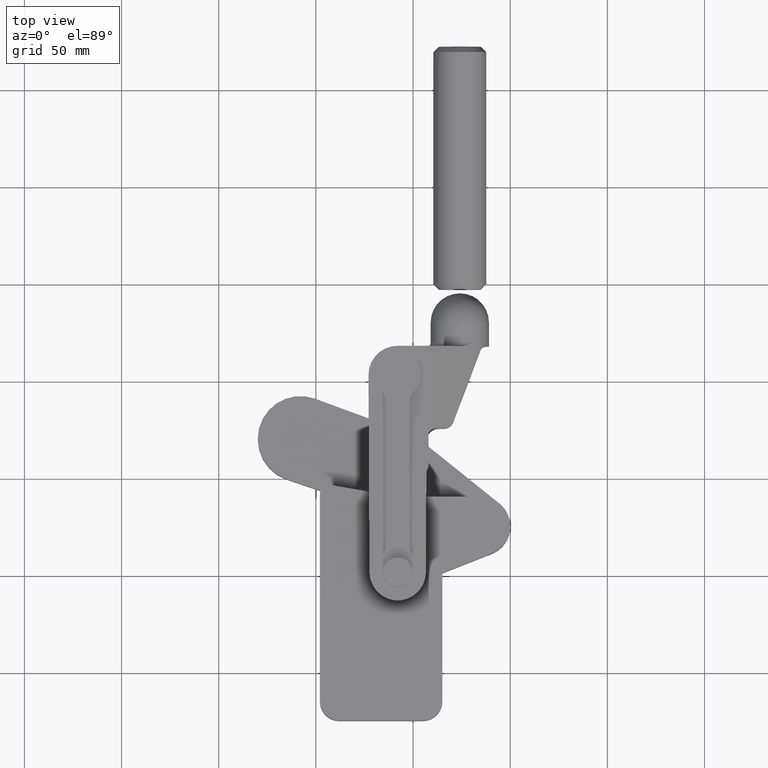
[diagram: clean part render]
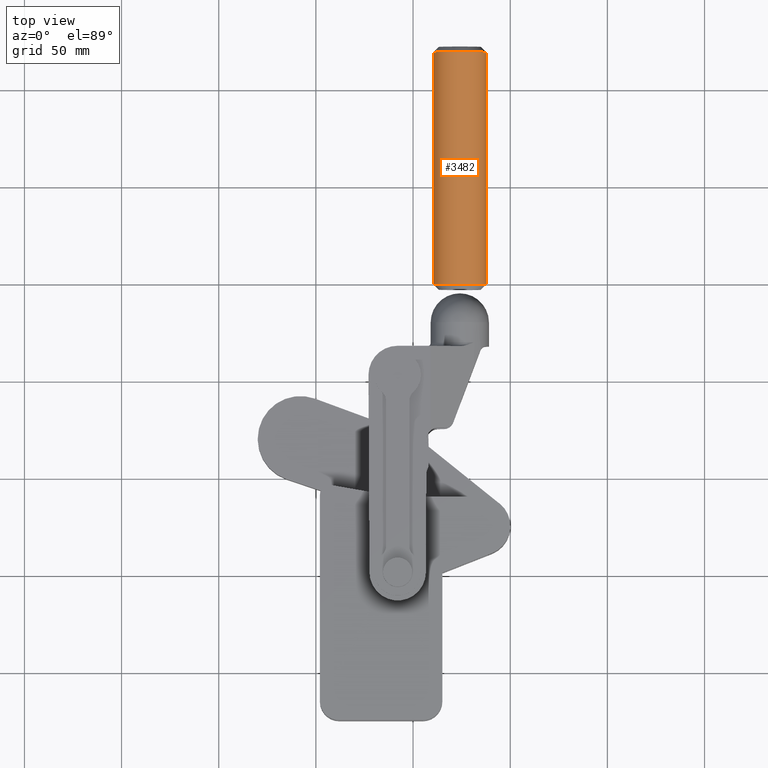
[diagram: same view with one face highlighted and labeled with its STEP entity id]
A machine part, top view. The second image highlights one B-rep face of the part: STEP entity #3482.
In plain terms, the highlighted cylindrical surface (edge-blend (fillet) strip) has radius 13.6 mm, axis along (-0, 1, 0).
Its self-contained STEP definition (entity closure, byte-faithful):
#3 = EDGE_CURVE ( 'NONE', #2210, #5060, #2033, .T. ) ;
#83 = CARTESIAN_POINT ( 'NONE',  ( -125.9537911822578900, 319.0024000505102900, -0.5924162648272348600 ) ) ;
#203 = VERTEX_POINT ( 'NONE', #5126 ) ;
#477 = EDGE_CURVE ( 'NONE', #203, #5060, #1132, .T. ) ;
#790 = CYLINDRICAL_SURFACE ( 'NONE', #3929, 13.60000000000000100 ) ;
#869 = VECTOR ( 'NONE', #3721, 1000.000000000000000 ) ;
#932 = LINE ( 'NONE', #4025, #2088 ) ;
#1132 = CIRCLE ( 'NONE', #4783, 13.60000000000000100 ) ;
#1292 = EDGE_CURVE ( 'NONE', #5420, #2210, #2377, .T. ) ;
#1697 = ORIENTED_EDGE ( 'NONE', *, *, #477, .F. ) ;
#1817 = EDGE_CURVE ( 'NONE', #5420, #203, #932, .T. ) ;
#1899 = ORIENTED_EDGE ( 'NONE', *, *, #1817, .F. ) ;
#2033 = LINE ( 'NONE', #4091, #869 ) ;
#2088 = VECTOR ( 'NONE', #2576, 1000.000000000000000 ) ;
#2210 = VERTEX_POINT ( 'NONE', #2449 ) ;
#2251 = DIRECTION ( 'NONE',  ( -1.000000000000000000, 0.0000000000000000000, 0.0000000000000000000 ) ) ;
#2279 = EDGE_LOOP ( 'NONE', ( #2772, #5174, #1697, #1899 ) ) ;
#2377 = CIRCLE ( 'NONE', #5047, 13.60000000000000100 ) ;
#2449 = CARTESIAN_POINT ( 'NONE',  ( -112.3537911822578500, 199.6024000505103700, -0.5924162648272333100 ) ) ;
#2516 = DIRECTION ( 'NONE',  ( -1.240359897555552500E-016, 1.000000000000000000, -0.0000000000000000000 ) ) ;
#2576 = DIRECTION ( 'NONE',  ( -1.240359897555552500E-016, 1.000000000000000000, -0.0000000000000000000 ) ) ;
#2772 = ORIENTED_EDGE ( 'NONE', *, *, #1292, .T. ) ;
#3079 = CARTESIAN_POINT ( 'NONE',  ( -112.3537911822578600, 319.0024000505102900, -0.5924162648272348600 ) ) ;
#3247 = FACE_OUTER_BOUND ( 'NONE', #2279, .T. ) ;
#3273 = DIRECTION ( 'NONE',  ( -1.000000000000000000, 0.0000000000000000000, 0.0000000000000000000 ) ) ;
#3354 = CARTESIAN_POINT ( 'NONE',  ( -139.5537911822578700, 199.6024000505103700, -0.5924162648272348600 ) ) ;
#3482 = ADVANCED_FACE ( 'NONE', ( #3247 ), #790, .T. ) ;
#3721 = DIRECTION ( 'NONE',  ( -1.240359897555552500E-016, 1.000000000000000000, -0.0000000000000000000 ) ) ;
#3929 = AXIS2_PLACEMENT_3D ( 'NONE', #5160, #2516, #5611 ) ;
#4025 = CARTESIAN_POINT ( 'NONE',  ( -139.5537911822579000, 321.8024000505103000, -0.5924162648272348600 ) ) ;
#4091 = CARTESIAN_POINT ( 'NONE',  ( -112.3537911822578800, 321.8024000505103000, -0.5924162648272333100 ) ) ;
#4783 = AXIS2_PLACEMENT_3D ( 'NONE', #83, #5349, #2251 ) ;
#4902 = DIRECTION ( 'NONE',  ( -1.240359897555552500E-016, 1.000000000000000000, -0.0000000000000000000 ) ) ;
#5047 = AXIS2_PLACEMENT_3D ( 'NONE', #5344, #4902, #3273 ) ;
#5060 = VERTEX_POINT ( 'NONE', #3079 ) ;
#5126 = CARTESIAN_POINT ( 'NONE',  ( -139.5537911822579000, 319.0024000505102900, -0.5924162648272333100 ) ) ;
#5160 = CARTESIAN_POINT ( 'NONE',  ( -125.9537911822578900, 321.8024000505103000, -0.5924162648272348600 ) ) ;
#5174 = ORIENTED_EDGE ( 'NONE', *, *, #3, .T. ) ;
#5344 = CARTESIAN_POINT ( 'NONE',  ( -125.9537911822578600, 199.6024000505103700, -0.5924162648272348600 ) ) ;
#5349 = DIRECTION ( 'NONE',  ( -1.240359897555552500E-016, 1.000000000000000000, -0.0000000000000000000 ) ) ;
#5420 = VERTEX_POINT ( 'NONE', #3354 ) ;
#5611 = DIRECTION ( 'NONE',  ( -1.000000000000000000, 0.0000000000000000000, 0.0000000000000000000 ) ) ;